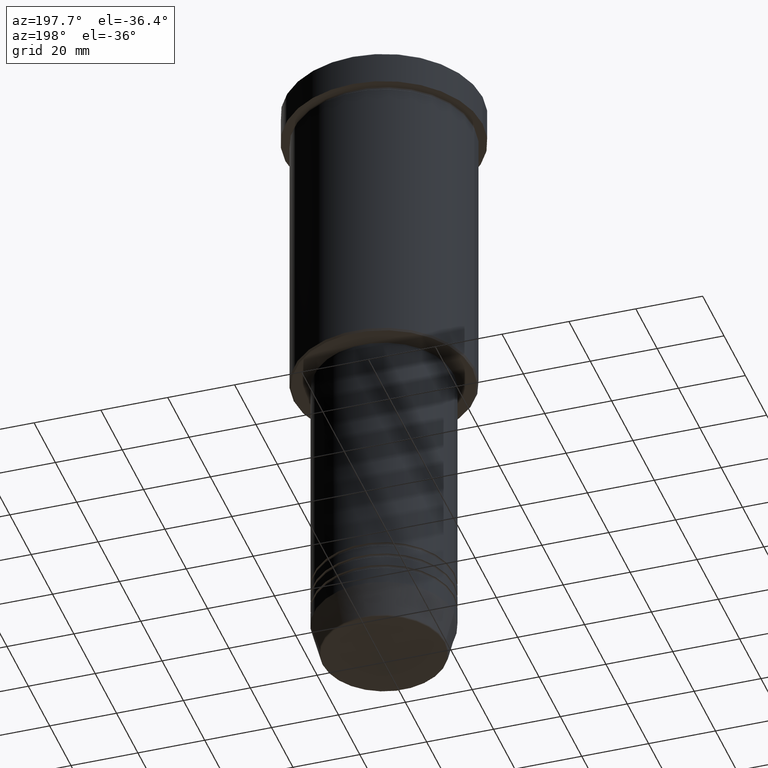
[diagram: clean part render]
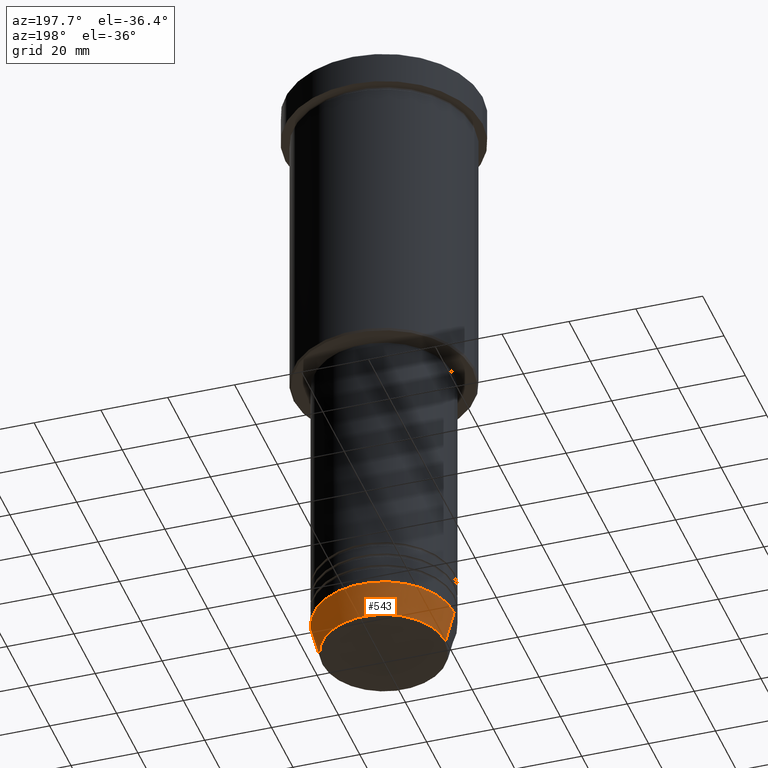
[diagram: same view with one face highlighted and labeled with its STEP entity id]
A machine part, auxiliary view. The second image highlights one B-rep face of the part: STEP entity #543.
In plain terms, the highlighted conical surface has half-angle 15 deg.
Its self-contained STEP definition (entity closure, byte-faithful):
#6 = VERTEX_POINT ( 'NONE', #522 ) ;
#33 = ORIENTED_EDGE ( 'NONE', *, *, #204, .T. ) ;
#137 = CARTESIAN_POINT ( 'NONE',  ( 0.000000000000000000, 0.000000000000000000, -181.0000000000000000 ) ) ;
#146 = LINE ( 'NONE', #153, #461 ) ;
#150 = ORIENTED_EDGE ( 'NONE', *, *, #339, .F. ) ;
#153 = CARTESIAN_POINT ( 'NONE',  ( 21.00000000000000000, 0.000000000000000000, -181.0000000000000000 ) ) ;
#166 = EDGE_CURVE ( 'NONE', #682, #402, #188, .T. ) ;
#188 = LINE ( 'NONE', #719, #1155 ) ;
#204 = EDGE_CURVE ( 'NONE', #226, #682, #868, .T. ) ;
#226 = VERTEX_POINT ( 'NONE', #463 ) ;
#292 = DIRECTION ( 'NONE',  ( -0.000000000000000000, -0.000000000000000000, 1.000000000000000000 ) ) ;
#309 = EDGE_LOOP ( 'NONE', ( #33, #687, #150, #837 ) ) ;
#319 = DIRECTION ( 'NONE',  ( -0.000000000000000000, -0.000000000000000000, 1.000000000000000000 ) ) ;
#337 = FACE_OUTER_BOUND ( 'NONE', #309, .T. ) ;
#339 = EDGE_CURVE ( 'NONE', #6, #402, #706, .T. ) ;
#402 = VERTEX_POINT ( 'NONE', #846 ) ;
#408 = DIRECTION ( 'NONE',  ( 1.000000000000000000, 0.000000000000000000, 0.000000000000000000 ) ) ;
#461 = VECTOR ( 'NONE', #705, 1000.000000000000114 ) ;
#463 = CARTESIAN_POINT ( 'NONE',  ( 18.41980749484383040, 0.000000000000000000, -190.6294095225512706 ) ) ;
#466 = CARTESIAN_POINT ( 'NONE',  ( -18.41980749484383040, 2.413767053578267064E-15, -190.6294095225512706 ) ) ;
#495 = AXIS2_PLACEMENT_3D ( 'NONE', #137, #319, #408 ) ;
#522 = CARTESIAN_POINT ( 'NONE',  ( 21.00000000000000000, 0.000000000000000000, -181.0000000000000000 ) ) ;
#543 = ADVANCED_FACE ( 'NONE', ( #337 ), #1097, .T. ) ;
#564 = AXIS2_PLACEMENT_3D ( 'NONE', #919, #292, #1105 ) ;
#658 = AXIS2_PLACEMENT_3D ( 'NONE', #971, #688, #877 ) ;
#682 = VERTEX_POINT ( 'NONE', #466 ) ;
#687 = ORIENTED_EDGE ( 'NONE', *, *, #166, .T. ) ;
#688 = DIRECTION ( 'NONE',  ( -0.000000000000000000, -0.000000000000000000, 1.000000000000000000 ) ) ;
#705 = DIRECTION ( 'NONE',  ( 0.2588190451025211836, 0.000000000000000000, 0.9659258262890680902 ) ) ;
#706 = CIRCLE ( 'NONE', #495, 21.00000000000000000 ) ;
#719 = CARTESIAN_POINT ( 'NONE',  ( -21.00000000000000000, 2.571758278209441661E-15, -181.0000000000000000 ) ) ;
#723 = DIRECTION ( 'NONE',  ( -0.2588190451025211836, 3.169619151431770488E-17, 0.9659258262890680902 ) ) ;
#837 = ORIENTED_EDGE ( 'NONE', *, *, #1094, .F. ) ;
#846 = CARTESIAN_POINT ( 'NONE',  ( -21.00000000000000000, 2.571758278209441661E-15, -181.0000000000000000 ) ) ;
#868 = CIRCLE ( 'NONE', #564, 18.41980749484383040 ) ;
#877 = DIRECTION ( 'NONE',  ( 1.000000000000000000, 0.000000000000000000, 0.000000000000000000 ) ) ;
#919 = CARTESIAN_POINT ( 'NONE',  ( 0.000000000000000000, 0.000000000000000000, -190.6294095225512706 ) ) ;
#971 = CARTESIAN_POINT ( 'NONE',  ( 0.000000000000000000, 0.000000000000000000, -181.0000000000000000 ) ) ;
#1094 = EDGE_CURVE ( 'NONE', #226, #6, #146, .T. ) ;
#1097 = CONICAL_SURFACE ( 'NONE', #658, 21.00000000000000000, 0.2617993877991499074 ) ;
#1105 = DIRECTION ( 'NONE',  ( 1.000000000000000000, 0.000000000000000000, 0.000000000000000000 ) ) ;
#1155 = VECTOR ( 'NONE', #723, 1000.000000000000114 ) ;